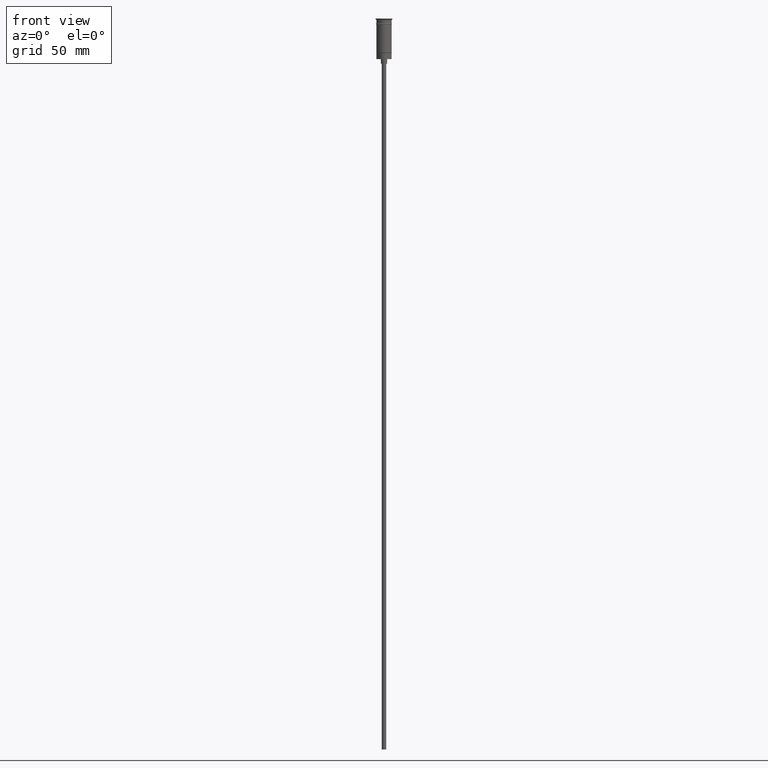
[diagram: clean part render]
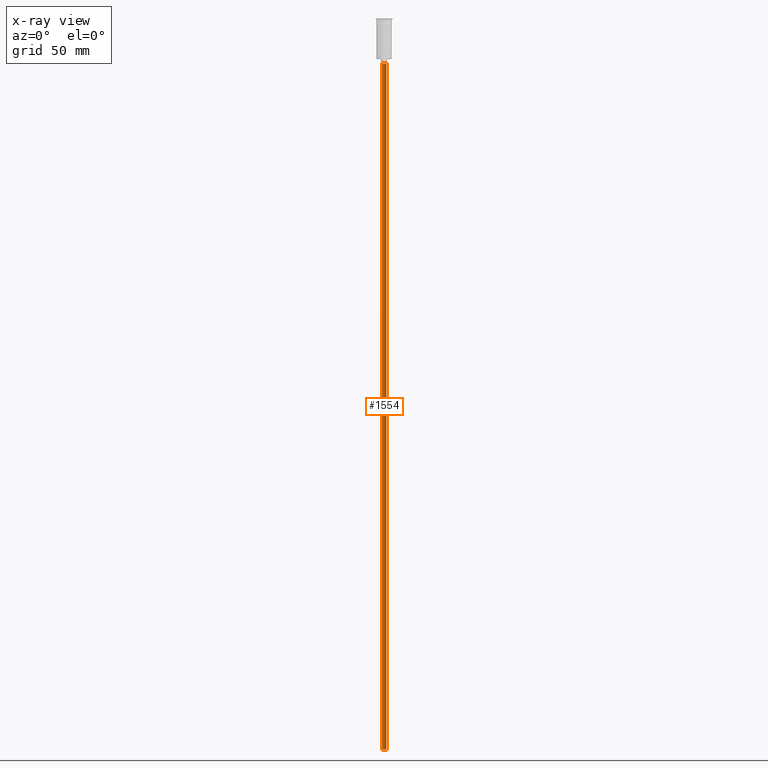
[diagram: x-ray — body ghosted, one internal face saturated and labeled with its STEP entity id]
A machine part, front view, then the same camera in x-ray: the body is ghosted and one INTERNAL B-rep face — a face not visible from any outside direction — is saturated and labeled: STEP entity #1554.
In plain terms, the highlighted cylindrical surface (edge-blend (fillet) strip) has radius 1.5 mm, axis along (-0, -0, 1).
Its self-contained STEP definition (entity closure, byte-faithful):
#48 = FACE_OUTER_BOUND ( 'NONE', #1190, .T. ) ;
#79 = ORIENTED_EDGE ( 'NONE', *, *, #1074, .T. ) ;
#91 = CARTESIAN_POINT ( 'NONE',  ( 0.000000000000000000, 0.000000000000000000, -29.50000000000000000 ) ) ;
#147 = DIRECTION ( 'NONE',  ( -0.000000000000000000, -0.000000000000000000, 1.000000000000000000 ) ) ;
#171 = CARTESIAN_POINT ( 'NONE',  ( 0.000000000000000000, 0.000000000000000000, -476.5000000000000568 ) ) ;
#178 = LINE ( 'NONE', #675, #370 ) ;
#236 = DIRECTION ( 'NONE',  ( 0.000000000000000000, 0.000000000000000000, -1.000000000000000000 ) ) ;
#337 = VECTOR ( 'NONE', #994, 1000.000000000000000 ) ;
#339 = AXIS2_PLACEMENT_3D ( 'NONE', #91, #236, #963 ) ;
#370 = VECTOR ( 'NONE', #147, 1000.000000000000000 ) ;
#409 = DIRECTION ( 'NONE',  ( 0.000000000000000000, 0.000000000000000000, -1.000000000000000000 ) ) ;
#542 = CYLINDRICAL_SURFACE ( 'NONE', #1514, 1.500000000000000222 ) ;
#553 = CARTESIAN_POINT ( 'NONE',  ( 1.500000000000000222, 0.000000000000000000, -476.5000000000000568 ) ) ;
#574 = EDGE_CURVE ( 'NONE', #1555, #649, #636, .T. ) ;
#636 = CIRCLE ( 'NONE', #1400, 1.500000000000000222 ) ;
#649 = VERTEX_POINT ( 'NONE', #553 ) ;
#672 = VERTEX_POINT ( 'NONE', #1299 ) ;
#675 = CARTESIAN_POINT ( 'NONE',  ( -1.500000000000000222, 1.836970198721030181E-16, -476.5000000000000568 ) ) ;
#696 = ORIENTED_EDGE ( 'NONE', *, *, #574, .F. ) ;
#722 = CARTESIAN_POINT ( 'NONE',  ( 1.500000000000000222, 0.000000000000000000, -476.5000000000000568 ) ) ;
#843 = ORIENTED_EDGE ( 'NONE', *, *, #1198, .F. ) ;
#859 = ORIENTED_EDGE ( 'NONE', *, *, #1346, .T. ) ;
#866 = CIRCLE ( 'NONE', #339, 1.500000000000000222 ) ;
#963 = DIRECTION ( 'NONE',  ( -1.000000000000000000, 0.000000000000000000, 0.000000000000000000 ) ) ;
#994 = DIRECTION ( 'NONE',  ( -0.000000000000000000, -0.000000000000000000, 1.000000000000000000 ) ) ;
#998 = CARTESIAN_POINT ( 'NONE',  ( -1.500000000000000222, 1.836970198721030181E-16, -476.5000000000000568 ) ) ;
#1044 = DIRECTION ( 'NONE',  ( -1.000000000000000000, 0.000000000000000000, 0.000000000000000000 ) ) ;
#1050 = DIRECTION ( 'NONE',  ( 1.000000000000000000, 0.000000000000000000, 0.000000000000000000 ) ) ;
#1074 = EDGE_CURVE ( 'NONE', #1555, #1409, #178, .T. ) ;
#1151 = CARTESIAN_POINT ( 'NONE',  ( -1.500000000000000222, 1.836970198721030181E-16, -29.50000000000000000 ) ) ;
#1169 = DIRECTION ( 'NONE',  ( -0.000000000000000000, -0.000000000000000000, 1.000000000000000000 ) ) ;
#1190 = EDGE_LOOP ( 'NONE', ( #696, #79, #859, #843 ) ) ;
#1198 = EDGE_CURVE ( 'NONE', #649, #672, #1488, .T. ) ;
#1250 = CARTESIAN_POINT ( 'NONE',  ( 0.000000000000000000, 0.000000000000000000, -476.5000000000000568 ) ) ;
#1299 = CARTESIAN_POINT ( 'NONE',  ( 1.500000000000000222, 0.000000000000000000, -29.50000000000000000 ) ) ;
#1346 = EDGE_CURVE ( 'NONE', #1409, #672, #866, .T. ) ;
#1400 = AXIS2_PLACEMENT_3D ( 'NONE', #1250, #409, #1044 ) ;
#1409 = VERTEX_POINT ( 'NONE', #1151 ) ;
#1488 = LINE ( 'NONE', #722, #337 ) ;
#1514 = AXIS2_PLACEMENT_3D ( 'NONE', #171, #1169, #1050 ) ;
#1554 = ADVANCED_FACE ( 'NONE', ( #48 ), #542, .T. ) ;
#1555 = VERTEX_POINT ( 'NONE', #998 ) ;